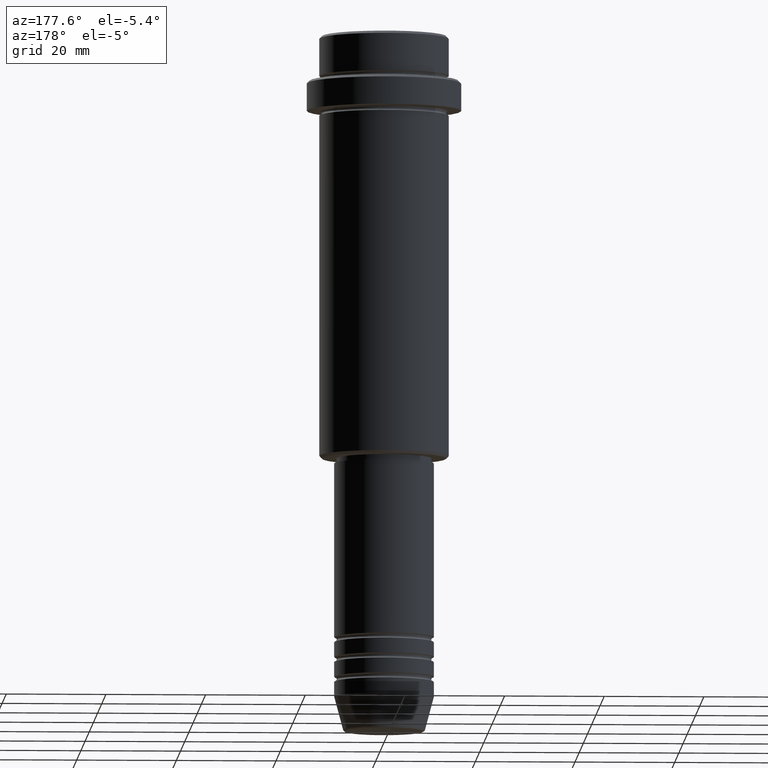
[diagram: clean part render]
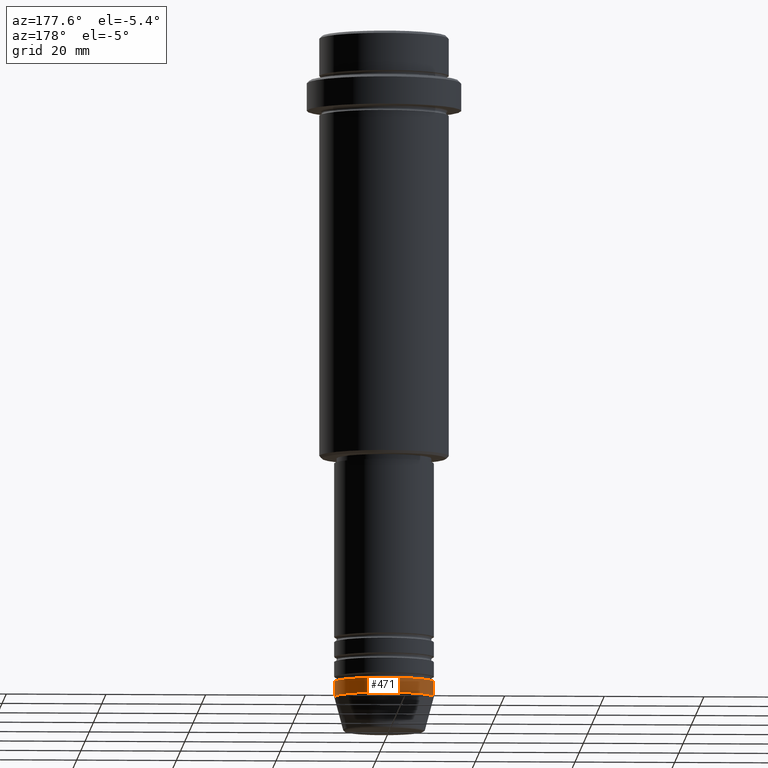
[diagram: same view with one face highlighted and labeled with its STEP entity id]
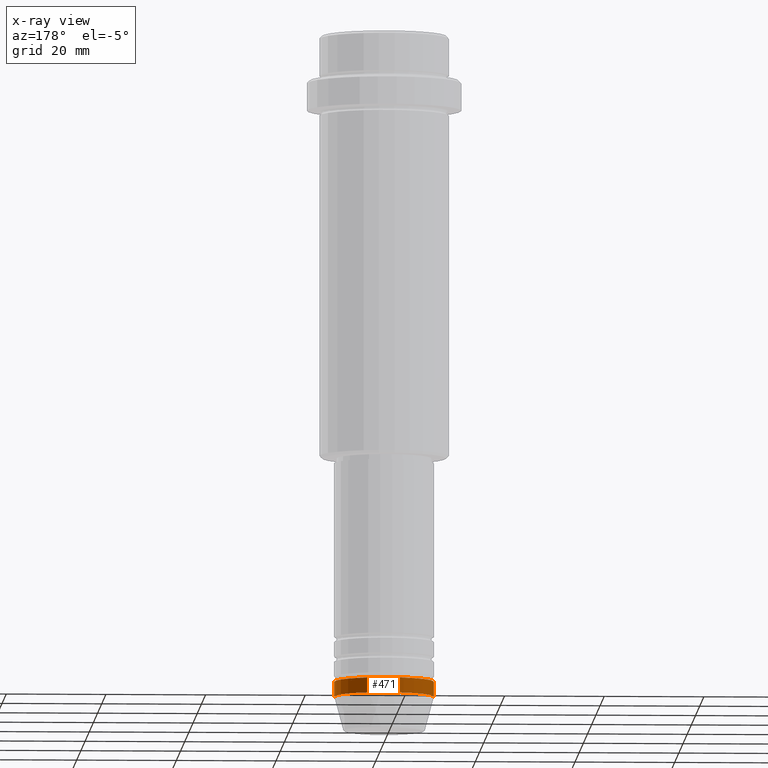
[diagram: x-ray of the same camera — body ghosted, the highlighted face saturated]
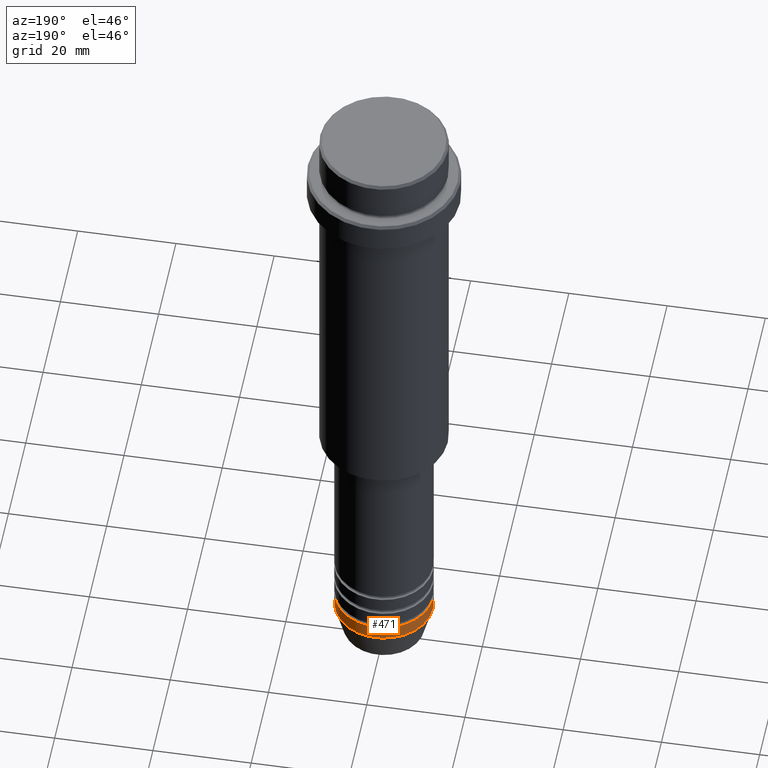
[diagram: same view with one face highlighted and labeled with its STEP entity id]
A machine part, auxiliary view. The second image highlights one B-rep face of the part: STEP entity #471.
The next image is the same camera in x-ray: the body ghosted, the highlighted face saturated — about 0% of this face is hidden behind the body in this view.
A second angle (auxiliary view) of the same face is appended — the face is thin or edge-on in the first view.
In plain terms, the highlighted cylindrical surface (partial cylindrical patch) has radius 10 mm, axis along (-0, -0, 1).
Its self-contained STEP definition (entity closure, byte-faithful):
#24 = CARTESIAN_POINT ( 'NONE',  ( 0.000000000000000000, 0.000000000000000000, -133.0000000000000000 ) ) ;
#32 = AXIS2_PLACEMENT_3D ( 'NONE', #902, #923, #1257 ) ;
#64 = ORIENTED_EDGE ( 'NONE', *, *, #660, .F. ) ;
#143 = CARTESIAN_POINT ( 'NONE',  ( -10.00000000000000000, 1.224646799147353256E-15, -130.0000000000000000 ) ) ;
#161 = FACE_OUTER_BOUND ( 'NONE', #1130, .T. ) ;
#199 = CIRCLE ( 'NONE', #911, 10.00000000000000000 ) ;
#220 = LINE ( 'NONE', #296, #488 ) ;
#281 = CARTESIAN_POINT ( 'NONE',  ( -10.00000000000000000, 1.224646799147353256E-15, 0.000000000000000000 ) ) ;
#296 = CARTESIAN_POINT ( 'NONE',  ( 10.00000000000000000, 0.000000000000000000, 0.000000000000000000 ) ) ;
#354 = EDGE_CURVE ( 'NONE', #1047, #718, #397, .T. ) ;
#397 = CIRCLE ( 'NONE', #32, 10.00000000000000000 ) ;
#471 = ADVANCED_FACE ( 'NONE', ( #161 ), #1357, .T. ) ;
#481 = CARTESIAN_POINT ( 'NONE',  ( 0.000000000000000000, 0.000000000000000000, 0.000000000000000000 ) ) ;
#485 = VERTEX_POINT ( 'NONE', #1013 ) ;
#488 = VECTOR ( 'NONE', #1072, 1000.000000000000000 ) ;
#499 = DIRECTION ( 'NONE',  ( -0.000000000000000000, -0.000000000000000000, 1.000000000000000000 ) ) ;
#605 = CARTESIAN_POINT ( 'NONE',  ( 10.00000000000000000, 0.000000000000000000, -130.0000000000000000 ) ) ;
#621 = CARTESIAN_POINT ( 'NONE',  ( 10.00000000000000000, 0.000000000000000000, -133.0000000000000000 ) ) ;
#639 = LINE ( 'NONE', #281, #984 ) ;
#660 = EDGE_CURVE ( 'NONE', #827, #1047, #220, .T. ) ;
#664 = ORIENTED_EDGE ( 'NONE', *, *, #354, .F. ) ;
#670 = ORIENTED_EDGE ( 'NONE', *, *, #908, .T. ) ;
#718 = VERTEX_POINT ( 'NONE', #143 ) ;
#827 = VERTEX_POINT ( 'NONE', #621 ) ;
#873 = AXIS2_PLACEMENT_3D ( 'NONE', #481, #1063, #1363 ) ;
#902 = CARTESIAN_POINT ( 'NONE',  ( 0.000000000000000000, 0.000000000000000000, -130.0000000000000000 ) ) ;
#908 = EDGE_CURVE ( 'NONE', #485, #718, #639, .T. ) ;
#911 = AXIS2_PLACEMENT_3D ( 'NONE', #24, #930, #1133 ) ;
#923 = DIRECTION ( 'NONE',  ( -0.000000000000000000, -0.000000000000000000, 1.000000000000000000 ) ) ;
#930 = DIRECTION ( 'NONE',  ( -0.000000000000000000, -0.000000000000000000, 1.000000000000000000 ) ) ;
#950 = EDGE_CURVE ( 'NONE', #827, #485, #199, .T. ) ;
#984 = VECTOR ( 'NONE', #499, 1000.000000000000000 ) ;
#1013 = CARTESIAN_POINT ( 'NONE',  ( -10.00000000000000000, 1.224646799147353256E-15, -133.0000000000000000 ) ) ;
#1047 = VERTEX_POINT ( 'NONE', #605 ) ;
#1063 = DIRECTION ( 'NONE',  ( -0.000000000000000000, -0.000000000000000000, 1.000000000000000000 ) ) ;
#1072 = DIRECTION ( 'NONE',  ( -0.000000000000000000, -0.000000000000000000, 1.000000000000000000 ) ) ;
#1130 = EDGE_LOOP ( 'NONE', ( #1154, #670, #664, #64 ) ) ;
#1133 = DIRECTION ( 'NONE',  ( 1.000000000000000000, 0.000000000000000000, 0.000000000000000000 ) ) ;
#1154 = ORIENTED_EDGE ( 'NONE', *, *, #950, .T. ) ;
#1257 = DIRECTION ( 'NONE',  ( 1.000000000000000000, 0.000000000000000000, 0.000000000000000000 ) ) ;
#1357 = CYLINDRICAL_SURFACE ( 'NONE', #873, 10.00000000000000000 ) ;
#1363 = DIRECTION ( 'NONE',  ( 1.000000000000000000, 0.000000000000000000, 0.000000000000000000 ) ) ;